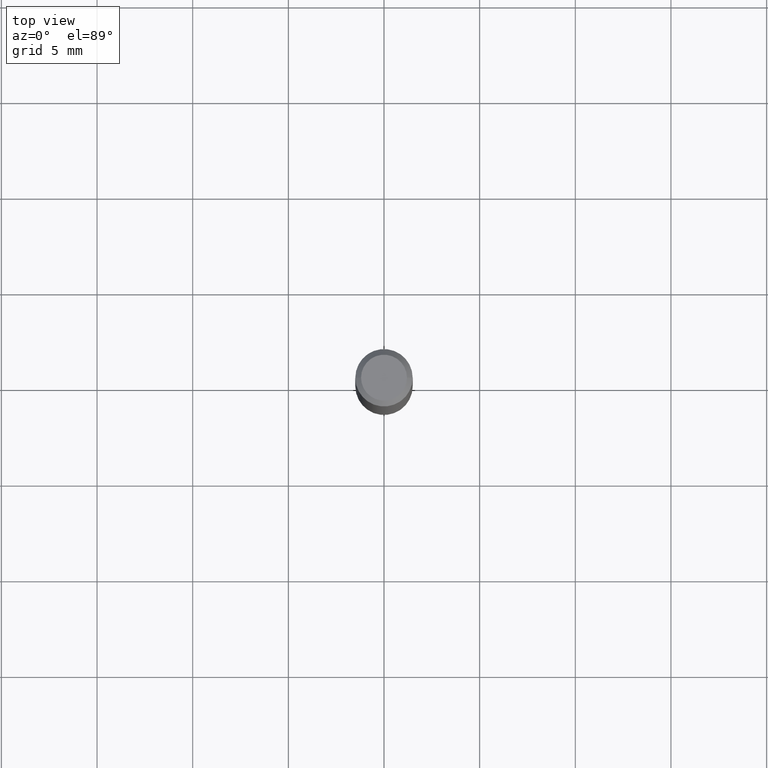
[diagram: clean part render]
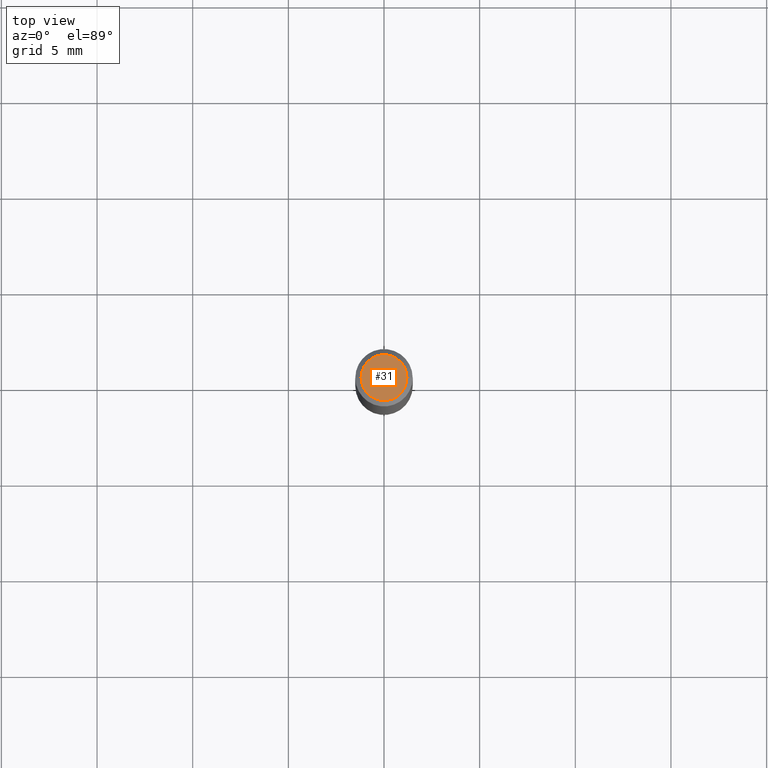
[diagram: same view with one face highlighted and labeled with its STEP entity id]
A machine part, top view. The second image highlights one B-rep face of the part: STEP entity #31.
In plain terms, the highlighted planar face has unit normal (0, -0, -1).
Its self-contained STEP definition (entity closure, byte-faithful):
#4 = CARTESIAN_POINT ( 'NONE',  ( 0.04724000000000000421, -3.852183633974369838E-16, -3.380025165621689721E-19 ) ) ;
#31 = ADVANCED_FACE ( 'NONE', ( #270 ), #121, .F. ) ;
#34 = AXIS2_PLACEMENT_3D ( 'NONE', #39, #80, #353 ) ;
#39 = CARTESIAN_POINT ( 'NONE',  ( 8.265746106709734507E-48, -1.180129479067563789E-33, -3.380025165646692144E-19 ) ) ;
#47 = CARTESIAN_POINT ( 'NONE',  ( -0.04724000000000000421, 3.504923541997677355E-16, -3.380025165670481712E-19 ) ) ;
#77 = CIRCLE ( 'NONE', #34, 0.04724000000000000421 ) ;
#80 = DIRECTION ( 'NONE',  ( -2.445468806185136597E-29, 3.491481338843145583E-15, 1.000000000000000000 ) ) ;
#98 = ORIENTED_EDGE ( 'NONE', *, *, #403, .T. ) ;
#113 = CARTESIAN_POINT ( 'NONE',  ( 4.132873053354867254E-48, -5.900647395337818946E-34, -1.690012582823346072E-19 ) ) ;
#121 = PLANE ( 'NONE',  #272 ) ;
#128 = CARTESIAN_POINT ( 'NONE',  ( 8.265746106709734507E-48, -1.180129479067563789E-33, -3.380025165646692144E-19 ) ) ;
#150 = CIRCLE ( 'NONE', #276, 0.04724000000000000421 ) ;
#155 = DIRECTION ( 'NONE',  ( 2.438088387897960049E-29, -3.491481338843145188E-15, -1.000000000000000000 ) ) ;
#189 = DIRECTION ( 'NONE',  ( 1.000000000000000000, -6.982962677686266711E-15, 4.876185090822587894E-29 ) ) ;
#270 = FACE_OUTER_BOUND ( 'NONE', #405, .T. ) ;
#272 = AXIS2_PLACEMENT_3D ( 'NONE', #113, #155, #344 ) ;
#276 = AXIS2_PLACEMENT_3D ( 'NONE', #128, #349, #189 ) ;
#318 = VERTEX_POINT ( 'NONE', #47 ) ;
#344 = DIRECTION ( 'NONE',  ( -1.000000000000000000, 6.982962677686265922E-15, -4.876176775795935793E-29 ) ) ;
#349 = DIRECTION ( 'NONE',  ( -2.445468806185136597E-29, 3.491481338843145583E-15, 1.000000000000000000 ) ) ;
#353 = DIRECTION ( 'NONE',  ( 1.000000000000000000, -6.982962677686266711E-15, 4.876185090822587894E-29 ) ) ;
#378 = EDGE_CURVE ( 'NONE', #318, #412, #77, .T. ) ;
#403 = EDGE_CURVE ( 'NONE', #412, #318, #150, .T. ) ;
#405 = EDGE_LOOP ( 'NONE', ( #454, #98 ) ) ;
#412 = VERTEX_POINT ( 'NONE', #4 ) ;
#454 = ORIENTED_EDGE ( 'NONE', *, *, #378, .T. ) ;